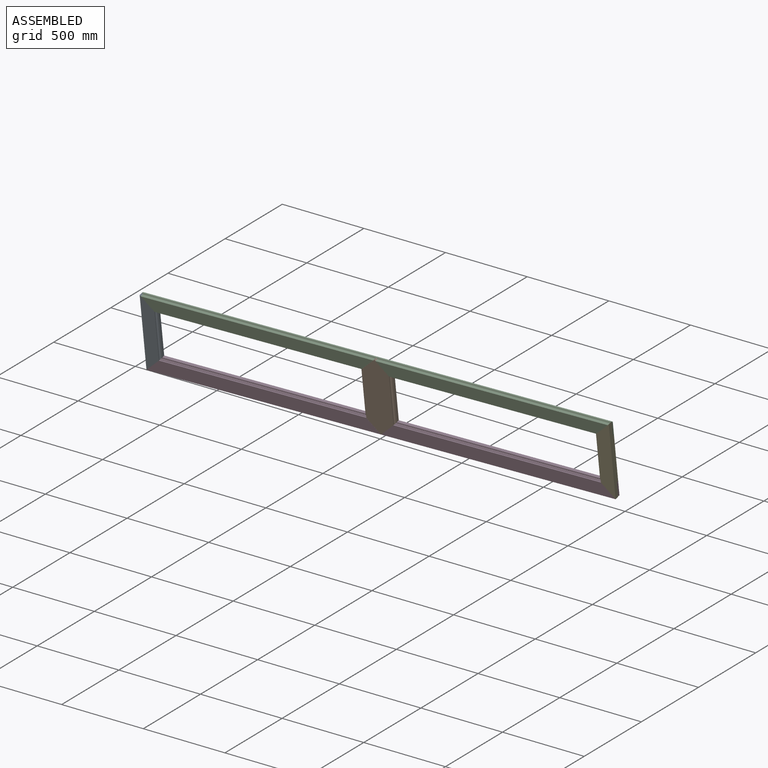
[diagram: assembled view]
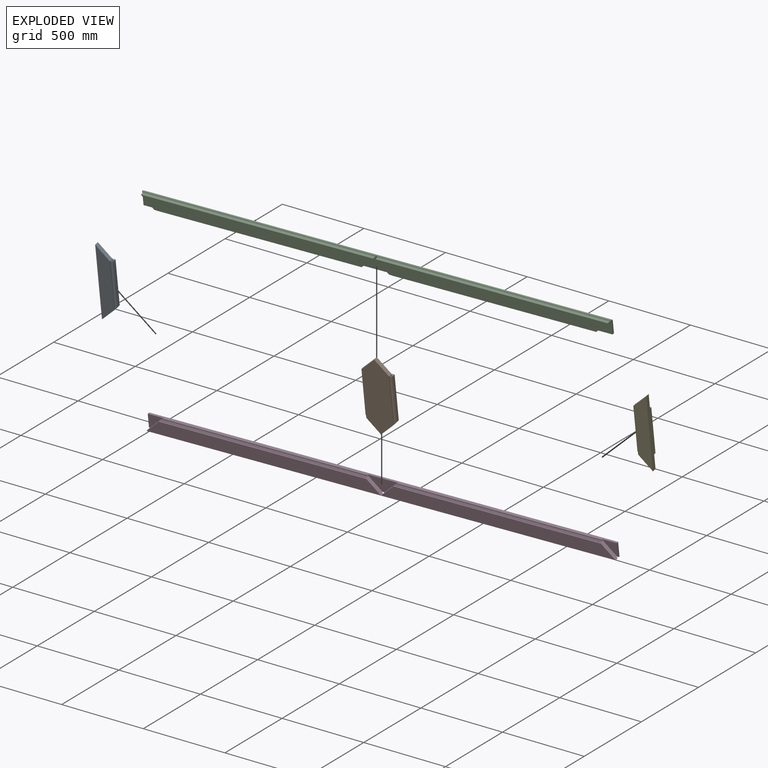
[diagram: exploded view]
GUIDED TOUR — MATED ASSEMBLY (Onshape document 4e31cb3151706491d3d17092, AutoMate assembly 4e31cb3151706491d3d17092_1473fdc243aa295805edc3ee_e0cff430ac73fe8d3c563f45_default)

This assembly has 5 components, labeled P0..P4 below (a component is one placed occurrence of a part; the same part can appear more than once), held together by 11 mates. A mate is a constraint between two components; its type names the relative motion it leaves free:
  PLANAR — leaves sliding in the plane through the listed point (normal = the listed direction) and rotation about that normal free.
Axis/direction vectors are unit vectors and 'through' points are millimeter coordinates, both in the assembly's world frame.

MATES
  1. PLANAR "Planar 1": P0 <-> P3, direction (0.681, 0.178, -0.711) through (-1346.15, -266.97, -180.40) mm
  2. PLANAR "Planar 3": P3 <-> P0, direction (0.067, -0.981, -0.182) through (-1358.34, -258.79, -160.40) mm
  3. PLANAR "Planar 11": P1 <-> P3, direction (-0.067, 0.981, 0.182) through (-20.21, -162.46, -189.99) mm
  4. PLANAR "Planar 5": P2 <-> P0, direction (-0.729, 0.076, -0.680) through (-1330.82, -333.39, 184.38) mm
  5. PLANAR "Planar 12": P3 <-> P1, direction (-0.681, -0.178, 0.711) through (22.27, -168.76, -209.84) mm
  6. PLANAR "Planar 9": P3 <-> P4, direction (0.729, -0.076, 0.680) through (1305.47, -76.43, -237.95) mm
  7. PLANAR "Planar 6": P2 <-> P0, direction (0.067, -0.981, -0.182) through (-1346.82, -319.69, 172.26) mm
  8. PLANAR "Planar 7": P3 <-> P4, direction (0.067, -0.981, -0.182) through (1317.75, -66.25, -219.01) mm
  9. PLANAR "Planar 10": P3 <-> P1, direction (0.034, -0.180, 0.983) through (-19.51, -164.41, -160.22) mm
  10. PLANAR "Planar 4": P0 <-> P2, direction (0.034, -0.180, 0.983) through (-1333.49, -307.06, 143.96) mm
  11. PLANAR "Planar 8": P4 <-> P3, direction (-0.034, 0.180, -0.983) through (1303.71, -66.35, -188.68) mm

ASSEMBLY ORDER
  1. P1 — the base component [order verified]
  2. P0 [order verified]
  3. P2 [order verified]
  4. P4 [order verified]
  5. P3 [order verified]
Order-tag legend:
  [order verified] — this step's position reverses a verified removal order: the component was checked to insert without passing through the ones already placed.

Of the 5 components, 5 carry the full construction recipe — the FeatureScript program that regenerates the part's solid from scratch; the rest are supplied as boundary geometry only.
Each toured component is shown spotlighted twice — in the assembled view, then in the exploded view, where a leader line traces a displaced component back to its assembled socket (saturated green if recipe-attached, orange if geometry-only; every other component desaturated gray) — followed by its recipe or geometry summary and the mates that hold it.
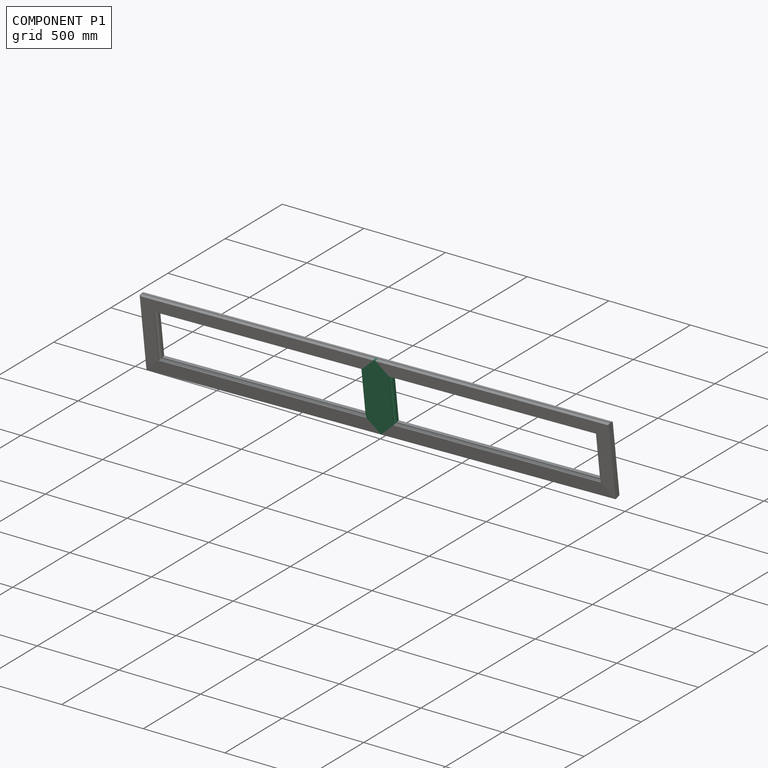
[diagram: component P1 — assembled]
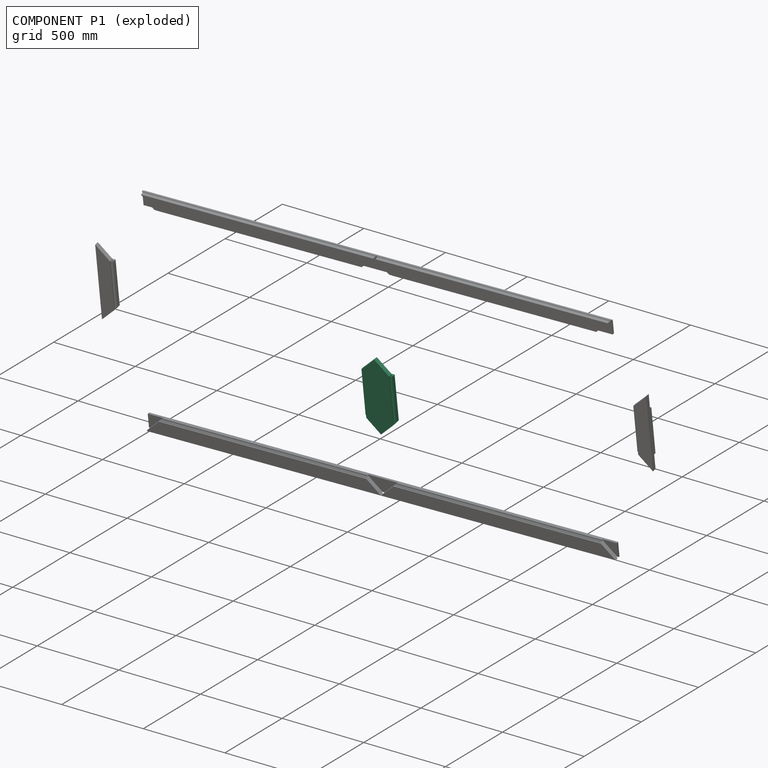
[diagram: component P1 — exploded]
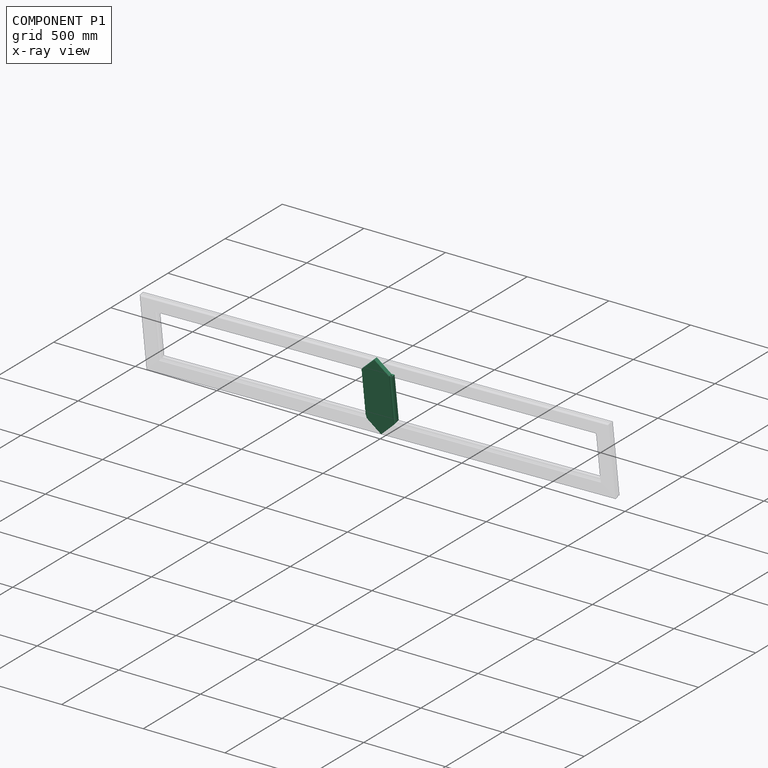
[diagram: component P1 — x-ray view]
COMPONENT P1 — recipe-attached (CADFS 00863584, mesh-verified: the recipe's output STEP matches this component's geometry to below the mesh-comparison resolution (tessellation chordal tolerance ~0.738 mm)).
Held by: PLANAR mate "Planar 11" to P3; PLANAR mate "Planar 12" to P3; PLANAR mate "Planar 10" to P3.
Construction recipe (FeatureScript — the CAD program that rebuilds this solid; sketch coordinates are in the units given by the * unit suffixes, e.g. mm):

FeatureScript 1511;
import(path : "onshape/std/geometry.fs", version : "1511.0");
import(path : "onshape/std/common.fs", version : "1511.0");
const mm = millimeter;
const VERTEX = EntityType.VERTEX;
const EDGE = EntityType.EDGE;
const FACE = EntityType.FACE;
const BODY = EntityType.BODY;
function v(x, y){return vector(x, y);}
function OD(order){return orderDisambiguation(order);}
function OSD(set){return originalSetDisambiguation(set);}
function TD(topology){return topologyDisambiguation(topology);}
function TDD(query){return trueDependencyDisambiguation(query);}
function sQuery(a, b, c) {return sketchEntityQuery(a, b, c);}

annotation { "Feature Type Name" : "Feature", "Feature Type Description" : "" }
export const myFeature = defineFeature(function(context is Context, id is Id, definition is map)
    precondition{}
    {
        {
            var Q0;
            Q0=qCreatedBy(makeId("Front.planeOp"),FACE);
            var sketch = newSketch(context, id + "F0", { "sketchPlane" : qUnion([Q0])});
            skLineSegment(sketch, "E0.bottom", {"start": v(-228.6, 44.45) * mm, "end": v(228.6, 44.45) * mm});
            skLineSegment(sketch, "E0.top", {"start": v(-228.6, -44.45) * mm, "end": v(228.6, -44.45) * mm});
            skLineSegment(sketch, "E0.left", {"start": v(-228.6, 44.45) * mm, "end": v(-228.6, -44.45) * mm});
            skLineSegment(sketch, "E0.right", {"start": v(228.6, 44.45) * mm, "end": v(228.6, -44.45) * mm});
            skPoint(sketch, "E0.middle", {"position": v(0, 0) * mm});
            skSolve(sketch);
        }
        {
            var Q0;
            Q0=qSketchRegion(id+"F0",true);
            extrude(context, id + "F1", {"entities" : qUnion([Q0]), "oppositeDirection" : true, "depth" : 38.1 * mm, "offsetDistance" : 25.4 * mm});
        }
        {
            var Q0;
            Q0=makeQuery(id+"F1.opExtrude","SWEPT_FACE",FACE,{"disambiguationData":[OSD([sQuery(id+"F0.wireOp",EDGE,"E0.right")])]});
            var sketch = newSketch(context, id + "F2", { "sketchPlane" : qUnion([Q0])});
            skLineSegment(sketch, "E1", {"start": v(22.22, -38.1) * mm, "end": v(19.05, -44.45) * mm});
            skLineSegment(sketch, "E2", {"start": v(31.75, -44.45) * mm, "end": v(28.57, -38.1) * mm});
            skLineSegment(sketch, "E3", {"start": v(22.22, -38.1) * mm, "end": v(28.57, -38.1) * mm});
            skLineSegment(sketch, "E4", {"start": v(31.75, -44.45) * mm, "end": v(19.05, -44.45) * mm});
            skSolve(sketch);
        }
        {
            var Q0;
            Q0=makeQuery(id+"F1.opExtrude","SWEPT_FACE",FACE,{"disambiguationData":[OSD([sQuery(id+"F0.wireOp",EDGE,"E0.right")])]});
            var sketch = newSketch(context, id + "F3", { "sketchPlane" : qUnion([Q0])});
            skLineSegment(sketch, "E5", {"start": v(0, 34.93) * mm, "end": v(6.35, 34.93) * mm});
            skLineSegment(sketch, "E6", {"start": v(12.7, 34.93) * mm, "end": v(19.05, 34.93) * mm});
            skArc(sketch, "E7", {"start": v(8.5, 39.69) * mm, "mid": v(6.91, 37.54) * mm, "end": v(6.35, 34.93) * mm});
            skLineSegment(sketch, "E8", {"start": v(12.7, 44.45) * mm, "end": v(12.7, 34.93) * mm});
            skLineSegment(sketch, "E9", {"start": v(19.05, 34.93) * mm, "end": v(19.05, 44.45) * mm});
            skLineSegment(sketch, "E10", {"start": v(10.65, 44.45) * mm, "end": v(0, 44.45) * mm});
            skLineSegment(sketch, "E11", {"start": v(0, 44.45) * mm, "end": v(0, 34.93) * mm});
            skLineSegment(sketch, "E12", {"start": v(12.7, 44.45) * mm, "end": v(19.05, 44.45) * mm});
            skArc(sketch, "E13", {"start": v(8.5, 39.69) * mm, "mid": v(10.09, 41.84) * mm, "end": v(10.65, 44.45) * mm});
            skSolve(sketch);
        }
        {
            var Q0;
            Q0=qSketchRegion(id+"F3",true);
            extrude(context, id + "F4", {"entities" : qUnion([Q0]), "operationType" : NewBodyOperationType.REMOVE, "endBound" : BoundingType.THROUGH_ALL, "oppositeDirection" : true, "depth" : 25.4 * mm, "offsetDistance" : 25.4 * mm});
        }
        {
            var Q0;
            Q0=makeQuery(id+"F1.opExtrude","CAP_FACE",FACE,{"disambiguationData":[OSD([sQuery(id+"F0.wireOp",EDGE,"E0.bottom"),sQuery(id+"F0.wireOp",EDGE,"E0.top"),sQuery(id+"F0.wireOp",EDGE,"E0.left"),sQuery(id+"F0.wireOp",EDGE,"E0.right")])],"isStart":true});
            var sketch = newSketch(context, id + "F5", { "sketchPlane" : qUnion([Q0])});
            skLineSegment(sketch, "E14", {"start": v(-228.6, -44.45) * mm, "end": v(-139.7, 44.45) * mm});
            skLineSegment(sketch, "E15", {"start": v(-139.7, 44.45) * mm, "end": v(-228.6, 44.45) * mm});
            skLineSegment(sketch, "E16", {"start": v(-228.6, 44.45) * mm, "end": v(-228.6, -44.45) * mm});
            skPoint(sketch, "E17", {"position": v(-228.6, -4.76) * mm});
            skLineSegment(sketch, "E18", {"start": v(0, 760.27) * mm, "end": v(0, -577.9) * mm, "construction": true});
            skLineSegment(sketch, "E19.MirrorCS", {"start": v(228.6, 44.45) * mm, "end": v(228.6, -44.45) * mm});
            skLineSegment(sketch, "E20.MirrorCS", {"start": v(228.6, -44.45) * mm, "end": v(139.7, 44.45) * mm});
            skLineSegment(sketch, "E21.MirrorCS", {"start": v(139.7, 44.45) * mm, "end": v(228.6, 44.45) * mm});
            skSolve(sketch);
        }
        {
            var Q0;
            Q0=qSketchRegion(id+"F5",true);
            extrude(context, id + "F6", {"entities" : qUnion([Q0]), "operationType" : NewBodyOperationType.REMOVE, "oppositeDirection" : true, "depth" : 25.4 * mm, "offsetDistance" : 25.4 * mm});
        }
        {
            var Q0;
            {var subQ2=sQuery(id+"F0.wireOp",EDGE,"E0.bottom");Q0=makeQuery(id+"F4.boolean.opBoolean","SPLIT",FACE,{"disambiguationData":[TD([makeQuery(id+"F4.opExtrude","SWEPT_FACE",FACE,{"disambiguationData":[OSD([sQuery(id+"F3.wireOp",EDGE,"E9")])]})])],"derivedFrom":makeQuery(id+"F1.opExtrude","SWEPT_FACE",FACE,{"disambiguationData":[OSD([subQ2])]})});}
            var sketch = newSketch(context, id + "F7", { "sketchPlane" : qUnion([Q0])});
            skLineSegment(sketch, "E22.bottom", {"start": v(-228.6, 38.1) * mm, "end": v(-139.7, 38.1) * mm});
            skLineSegment(sketch, "E22.top", {"start": v(-228.6, 25.4) * mm, "end": v(-139.7, 25.4) * mm});
            skLineSegment(sketch, "E22.left", {"start": v(-228.6, 38.1) * mm, "end": v(-228.6, 25.4) * mm});
            skLineSegment(sketch, "E22.right", {"start": v(-139.7, 38.1) * mm, "end": v(-139.7, 25.4) * mm});
            skLineSegment(sketch, "E23", {"start": v(0, 107.05) * mm, "end": v(0, -115.05) * mm, "construction": true});
            skLineSegment(sketch, "E24.MirrorCS", {"start": v(228.6, 38.1) * mm, "end": v(139.7, 38.1) * mm});
            skLineSegment(sketch, "E25.MirrorCS", {"start": v(228.6, 38.1) * mm, "end": v(228.6, 25.4) * mm});
            skLineSegment(sketch, "E26.MirrorCS", {"start": v(228.6, 25.4) * mm, "end": v(139.7, 25.4) * mm});
            skLineSegment(sketch, "E27.MirrorCS", {"start": v(139.7, 38.1) * mm, "end": v(139.7, 25.4) * mm});
            skSolve(sketch);
        }
        {
            var Q0;
            Q0=qSketchRegion(id+"F7",true);
            extrude(context, id + "F8", {"entities" : qUnion([Q0]), "operationType" : NewBodyOperationType.REMOVE, "endBound" : BoundingType.UP_TO_NEXT, "oppositeDirection" : true, "depth" : 25.4 * mm, "offsetDistance" : 25.4 * mm});
        }
        {
            var Q0;
            Q0=makeQuery(id+"F1.opExtrude","SWEPT_BODY",BODY,{"disambiguationData":[OSD([sQuery(id+"F0.wireOp",EDGE,"E0.bottom"),sQuery(id+"F0.wireOp",EDGE,"E0.top"),sQuery(id+"F0.wireOp",EDGE,"E0.left"),sQuery(id+"F0.wireOp",EDGE,"E0.right")])]});
            var Q1;
            Q1=makeQuery(id+"F1.opExtrude","SWEPT_FACE",FACE,{"disambiguationData":[OSD([sQuery(id+"F0.wireOp",EDGE,"E0.top")])]});
            mirror(context, id + "F9", {"operationType" : NewBodyOperationType.ADD, "entities" : qUnion([Q0]), "mirrorPlane" : qUnion([Q1])});
        }
    });
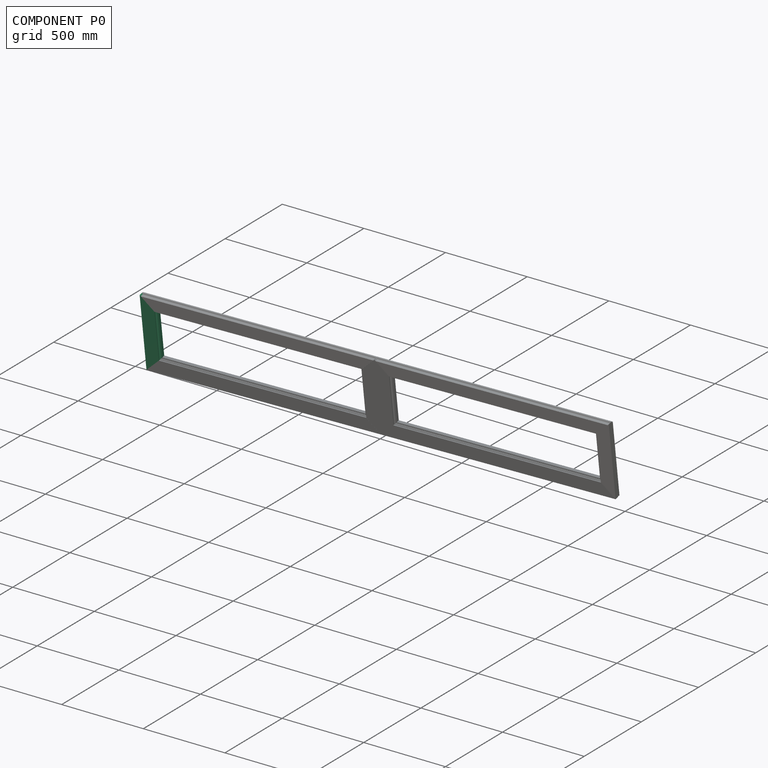
[diagram: component P0 — assembled]
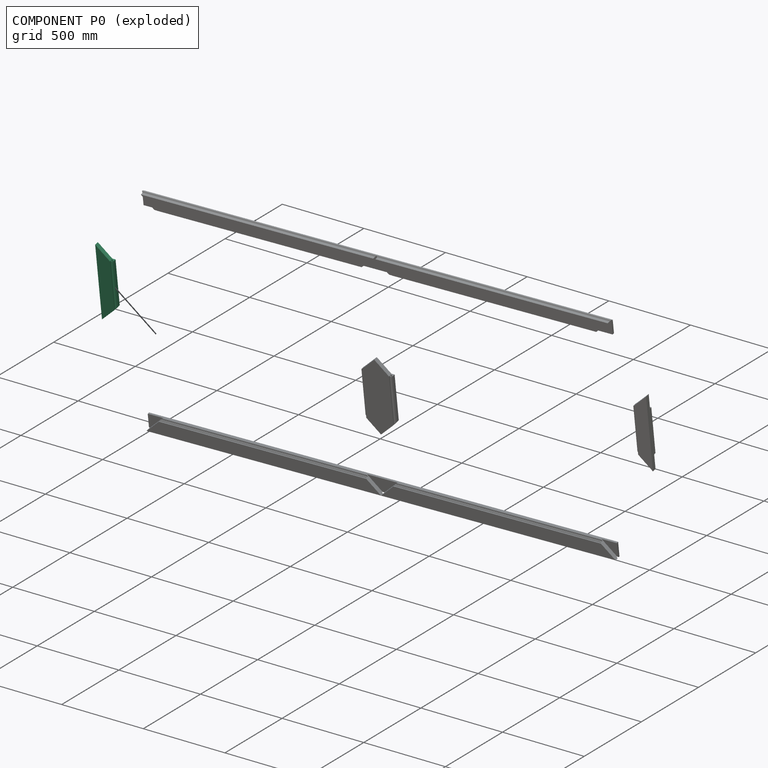
[diagram: component P0 — exploded]
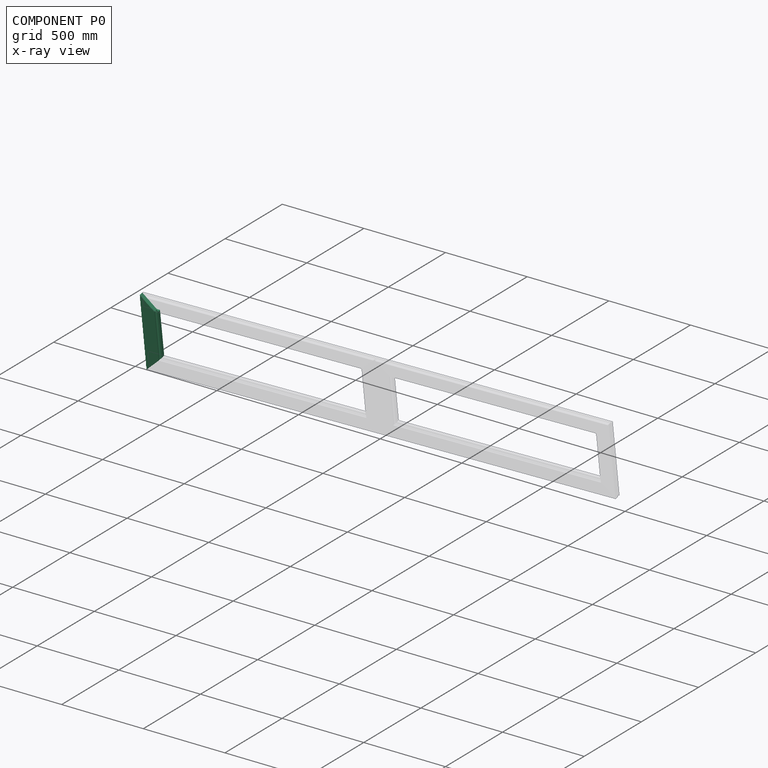
[diagram: component P0 — x-ray view]
COMPONENT P0 — recipe-attached (CADFS 00863583, mesh-verified: the recipe's output STEP matches this component's geometry to below the mesh-comparison resolution (tessellation chordal tolerance ~0.701 mm)).
Held by: PLANAR mate "Planar 1" to P3; PLANAR mate "Planar 3" to P3; PLANAR mate "Planar 5" to P2; PLANAR mate "Planar 6" to P2; PLANAR mate "Planar 4" to P2.
Construction recipe (FeatureScript — the CAD program that rebuilds this solid; sketch coordinates are in the units given by the * unit suffixes, e.g. mm):

FeatureScript 1511;
import(path : "onshape/std/geometry.fs", version : "1511.0");
import(path : "onshape/std/common.fs", version : "1511.0");
const mm = millimeter;
const VERTEX = EntityType.VERTEX;
const EDGE = EntityType.EDGE;
const FACE = EntityType.FACE;
const BODY = EntityType.BODY;
function v(x, y){return vector(x, y);}
function OD(order){return orderDisambiguation(order);}
function OSD(set){return originalSetDisambiguation(set);}
function TD(topology){return topologyDisambiguation(topology);}
function TDD(query){return trueDependencyDisambiguation(query);}
function sQuery(a, b, c) {return sketchEntityQuery(a, b, c);}

annotation { "Feature Type Name" : "Feature", "Feature Type Description" : "" }
export const myFeature = defineFeature(function(context is Context, id is Id, definition is map)
    precondition{}
    {
        {
            var Q0;
            Q0=qCreatedBy(makeId("Front.planeOp"),FACE);
            var sketch = newSketch(context, id + "F0", { "sketchPlane" : qUnion([Q0])});
            skLineSegment(sketch, "E0.bottom", {"start": v(-228.6, 44.45) * mm, "end": v(228.6, 44.45) * mm});
            skLineSegment(sketch, "E0.top", {"start": v(-228.6, -44.45) * mm, "end": v(228.6, -44.45) * mm});
            skLineSegment(sketch, "E0.left", {"start": v(-228.6, 44.45) * mm, "end": v(-228.6, -44.45) * mm});
            skLineSegment(sketch, "E0.right", {"start": v(228.6, 44.45) * mm, "end": v(228.6, -44.45) * mm});
            skPoint(sketch, "E0.middle", {"position": v(0, 0) * mm});
            skSolve(sketch);
        }
        {
            var Q0;
            Q0=qSketchRegion(id+"F0",true);
            extrude(context, id + "F1", {"entities" : qUnion([Q0]), "oppositeDirection" : true, "depth" : 38.1 * mm, "offsetDistance" : 25.4 * mm});
        }
        {
            var Q0;
            Q0=makeQuery(id+"F1.opExtrude","SWEPT_FACE",FACE,{"disambiguationData":[OSD([sQuery(id+"F0.wireOp",EDGE,"E0.right")])]});
            var sketch = newSketch(context, id + "F2", { "sketchPlane" : qUnion([Q0])});
            skLineSegment(sketch, "E1", {"start": v(22.22, -38.1) * mm, "end": v(19.05, -44.45) * mm});
            skLineSegment(sketch, "E2", {"start": v(31.75, -44.45) * mm, "end": v(28.57, -38.1) * mm});
            skLineSegment(sketch, "E3", {"start": v(22.22, -38.1) * mm, "end": v(28.57, -38.1) * mm});
            skLineSegment(sketch, "E4", {"start": v(31.75, -44.45) * mm, "end": v(19.05, -44.45) * mm});
            skSolve(sketch);
        }
        {
            var Q0;
            Q0=makeQuery(id+"F1.opExtrude","SWEPT_FACE",FACE,{"disambiguationData":[OSD([sQuery(id+"F0.wireOp",EDGE,"E0.right")])]});
            var sketch = newSketch(context, id + "F3", { "sketchPlane" : qUnion([Q0])});
            skLineSegment(sketch, "E5", {"start": v(0, 34.93) * mm, "end": v(6.35, 34.93) * mm});
            skLineSegment(sketch, "E6", {"start": v(12.7, 34.93) * mm, "end": v(19.05, 34.93) * mm});
            skArc(sketch, "E7", {"start": v(8.5, 39.69) * mm, "mid": v(6.91, 37.54) * mm, "end": v(6.35, 34.93) * mm});
            skLineSegment(sketch, "E8", {"start": v(12.7, 44.45) * mm, "end": v(12.7, 34.93) * mm});
            skLineSegment(sketch, "E9", {"start": v(19.05, 34.93) * mm, "end": v(19.05, 44.45) * mm});
            skLineSegment(sketch, "E10", {"start": v(10.65, 44.45) * mm, "end": v(0, 44.45) * mm});
            skLineSegment(sketch, "E11", {"start": v(0, 44.45) * mm, "end": v(0, 34.93) * mm});
            skLineSegment(sketch, "E12", {"start": v(12.7, 44.45) * mm, "end": v(19.05, 44.45) * mm});
            skArc(sketch, "E13", {"start": v(8.5, 39.69) * mm, "mid": v(10.09, 41.84) * mm, "end": v(10.65, 44.45) * mm});
            skSolve(sketch);
        }
        {
            var Q0;
            Q0=qSketchRegion(id+"F3",true);
            extrude(context, id + "F4", {"entities" : qUnion([Q0]), "operationType" : NewBodyOperationType.REMOVE, "endBound" : BoundingType.THROUGH_ALL, "oppositeDirection" : true, "depth" : 25.4 * mm, "offsetDistance" : 25.4 * mm});
        }
        {
            var Q0;
            Q0=makeQuery(id+"F1.opExtrude","CAP_FACE",FACE,{"disambiguationData":[OSD([sQuery(id+"F0.wireOp",EDGE,"E0.bottom"),sQuery(id+"F0.wireOp",EDGE,"E0.top"),sQuery(id+"F0.wireOp",EDGE,"E0.left"),sQuery(id+"F0.wireOp",EDGE,"E0.right")])],"isStart":true});
            var sketch = newSketch(context, id + "F5", { "sketchPlane" : qUnion([Q0])});
            skLineSegment(sketch, "E14", {"start": v(-228.6, -44.45) * mm, "end": v(-139.7, 44.45) * mm});
            skLineSegment(sketch, "E15", {"start": v(-139.7, 44.45) * mm, "end": v(-228.6, 44.45) * mm});
            skLineSegment(sketch, "E16", {"start": v(-228.6, 44.45) * mm, "end": v(-228.6, -44.45) * mm});
            skPoint(sketch, "E17", {"position": v(-228.6, -4.76) * mm});
            skLineSegment(sketch, "E18", {"start": v(0, 760.27) * mm, "end": v(0, -577.9) * mm, "construction": true});
            skLineSegment(sketch, "E19.MirrorCS", {"start": v(228.6, 44.45) * mm, "end": v(228.6, -44.45) * mm});
            skLineSegment(sketch, "E20.MirrorCS", {"start": v(228.6, -44.45) * mm, "end": v(139.7, 44.45) * mm});
            skLineSegment(sketch, "E21.MirrorCS", {"start": v(139.7, 44.45) * mm, "end": v(228.6, 44.45) * mm});
            skSolve(sketch);
        }
        {
            var Q0;
            Q0=qSketchRegion(id+"F5",true);
            extrude(context, id + "F6", {"entities" : qUnion([Q0]), "operationType" : NewBodyOperationType.REMOVE, "oppositeDirection" : true, "depth" : 25.4 * mm, "offsetDistance" : 25.4 * mm});
        }
        {
            var Q0;
            {var subQ2=sQuery(id+"F0.wireOp",EDGE,"E0.bottom");Q0=makeQuery(id+"F4.boolean.opBoolean","SPLIT",FACE,{"disambiguationData":[TD([makeQuery(id+"F4.opExtrude","SWEPT_FACE",FACE,{"disambiguationData":[OSD([sQuery(id+"F3.wireOp",EDGE,"E9")])]})])],"derivedFrom":makeQuery(id+"F1.opExtrude","SWEPT_FACE",FACE,{"disambiguationData":[OSD([subQ2])]})});}
            var sketch = newSketch(context, id + "F7", { "sketchPlane" : qUnion([Q0])});
            skLineSegment(sketch, "E22.bottom", {"start": v(-228.6, 38.1) * mm, "end": v(-139.7, 38.1) * mm});
            skLineSegment(sketch, "E22.top", {"start": v(-228.6, 25.4) * mm, "end": v(-139.7, 25.4) * mm});
            skLineSegment(sketch, "E22.left", {"start": v(-228.6, 38.1) * mm, "end": v(-228.6, 25.4) * mm});
            skLineSegment(sketch, "E22.right", {"start": v(-139.7, 38.1) * mm, "end": v(-139.7, 25.4) * mm});
            skLineSegment(sketch, "E23", {"start": v(0, 107.05) * mm, "end": v(0, -115.05) * mm, "construction": true});
            skLineSegment(sketch, "E24.MirrorCS", {"start": v(228.6, 38.1) * mm, "end": v(139.7, 38.1) * mm});
            skLineSegment(sketch, "E25.MirrorCS", {"start": v(228.6, 38.1) * mm, "end": v(228.6, 25.4) * mm});
            skLineSegment(sketch, "E26.MirrorCS", {"start": v(228.6, 25.4) * mm, "end": v(139.7, 25.4) * mm});
            skLineSegment(sketch, "E27.MirrorCS", {"start": v(139.7, 38.1) * mm, "end": v(139.7, 25.4) * mm});
            skSolve(sketch);
        }
        {
            var Q0;
            Q0 = qSketchRegion(id + "F7", true);
            extrude(context, id + "F8", {"entities" : qUnion([Q0]), "operationType" : NewBodyOperationType.REMOVE, "endBound" : BoundingType.UP_TO_NEXT, "oppositeDirection" : true, "depth" : 25.4 * mm, "offsetDistance" : 25.4 * mm});
        }
    });
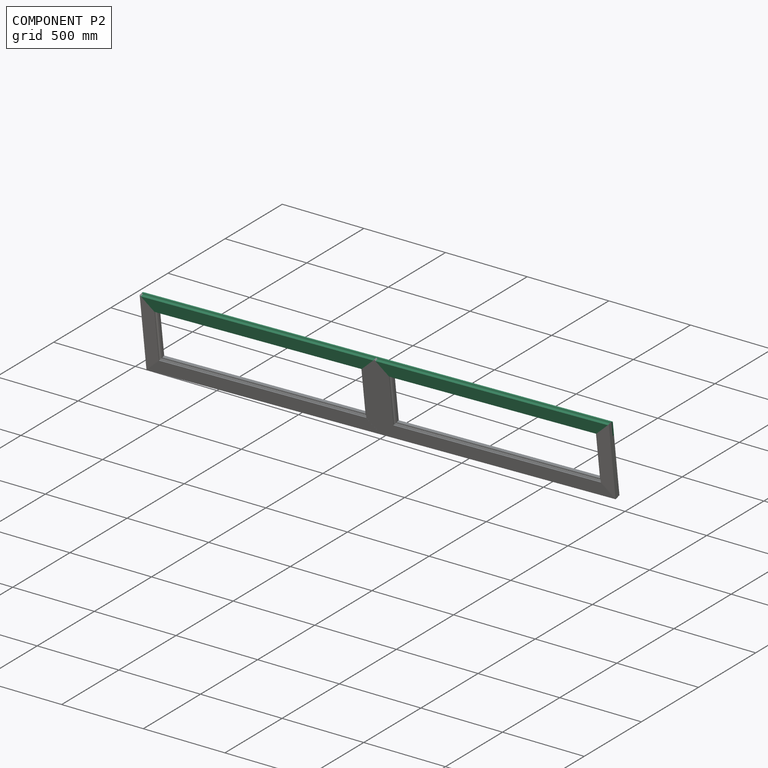
[diagram: component P2 — assembled]
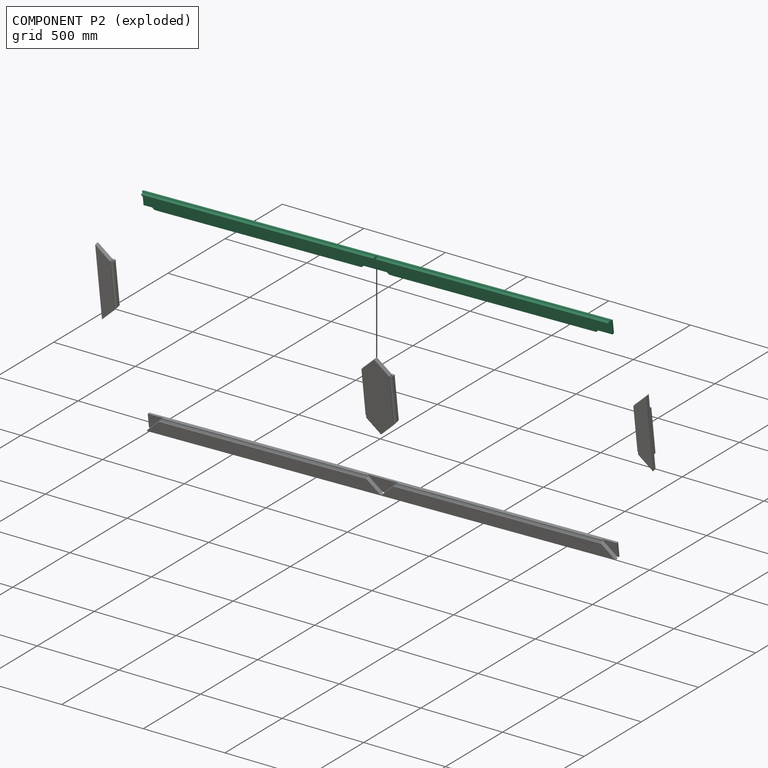
[diagram: component P2 — exploded]
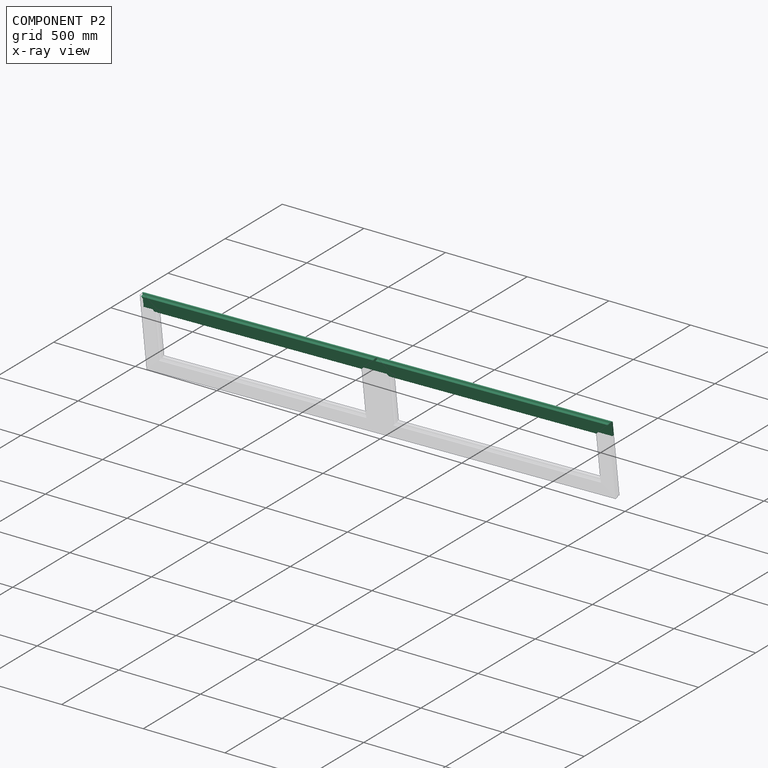
[diagram: component P2 — x-ray view]
COMPONENT P2 — recipe-attached (CADFS 00863587, mesh-verified: the recipe's output STEP matches this component's geometry to below the mesh-comparison resolution (tessellation chordal tolerance ~4.12 mm)).
Held by: PLANAR mate "Planar 5" to P0; PLANAR mate "Planar 6" to P0; PLANAR mate "Planar 4" to P0.
Construction recipe (FeatureScript — the CAD program that rebuilds this solid; sketch coordinates are in the units given by the * unit suffixes, e.g. mm):

FeatureScript 1511;
import(path : "onshape/std/geometry.fs", version : "1511.0");
import(path : "onshape/std/common.fs", version : "1511.0");
const mm = millimeter;
const VERTEX = EntityType.VERTEX;
const EDGE = EntityType.EDGE;
const FACE = EntityType.FACE;
const BODY = EntityType.BODY;
function v(x, y){return vector(x, y);}
function OD(order){return orderDisambiguation(order);}
function OSD(set){return originalSetDisambiguation(set);}
function TD(topology){return topologyDisambiguation(topology);}
function TDD(query){return trueDependencyDisambiguation(query);}
function sQuery(a, b, c) {return sketchEntityQuery(a, b, c);}

annotation { "Feature Type Name" : "Feature", "Feature Type Description" : "" }
export const myFeature = defineFeature(function(context is Context, id is Id, definition is map)
    precondition{}
    {
        {
            var Q0;
            Q0=qCreatedBy(makeId("Front.planeOp"),FACE);
            var sketch = newSketch(context, id + "F0", { "sketchPlane" : qUnion([Q0])});
            skLineSegment(sketch, "E0.bottom", {"start": v(-1371.6, 44.45) * mm, "end": v(1371.6, 44.45) * mm});
            skLineSegment(sketch, "E0.top", {"start": v(-1371.6, -44.45) * mm, "end": v(1371.6, -44.45) * mm});
            skLineSegment(sketch, "E0.left", {"start": v(-1371.6, 44.45) * mm, "end": v(-1371.6, -44.45) * mm});
            skLineSegment(sketch, "E0.right", {"start": v(1371.6, 44.45) * mm, "end": v(1371.6, -44.45) * mm});
            skPoint(sketch, "E0.middle", {"position": v(0, 0) * mm});
            skSolve(sketch);
        }
        {
            var Q0;
            Q0=qSketchRegion(id+"F0",true);
            extrude(context, id + "F1", {"entities" : qUnion([Q0]), "oppositeDirection" : true, "depth" : 38.1 * mm, "offsetDistance" : 25.4 * mm});
        }
        {
            var Q0;
            Q0=makeQuery(id+"F1.opExtrude","SWEPT_FACE",FACE,{"disambiguationData":[OSD([sQuery(id+"F0.wireOp",EDGE,"E0.right")])]});
            var sketch = newSketch(context, id + "F2", { "sketchPlane" : qUnion([Q0])});
            skLineSegment(sketch, "E1", {"start": v(38.1, 44.45) * mm, "end": v(38.1, 38.1) * mm});
            skLineSegment(sketch, "E2", {"start": v(38.1, 38.1) * mm, "end": v(31.75, 38.1) * mm});
            skLineSegment(sketch, "E3", {"start": v(31.75, 38.1) * mm, "end": v(28.58, 44.45) * mm});
            skLineSegment(sketch, "E4", {"start": v(22.23, 44.45) * mm, "end": v(19.05, 38.1) * mm});
            skLineSegment(sketch, "E5", {"start": v(19.05, 38.1) * mm, "end": v(0, 38.1) * mm});
            skLineSegment(sketch, "E6", {"start": v(0, 38.1) * mm, "end": v(0, 44.45) * mm});
            skLineSegment(sketch, "E7", {"start": v(0, 44.45) * mm, "end": v(22.22, 44.45) * mm});
            skLineSegment(sketch, "E8", {"start": v(28.58, 44.45) * mm, "end": v(38.1, 44.45) * mm});
            skSolve(sketch);
        }
        {
            var Q0;
            Q0=qSketchRegion(id+"F2",true);
            extrude(context, id + "F3", {"entities" : qUnion([Q0]), "operationType" : NewBodyOperationType.REMOVE, "endBound" : BoundingType.THROUGH_ALL, "oppositeDirection" : true, "depth" : 25.4 * mm, "offsetDistance" : 25.4 * mm});
        }
        {
            var Q0;
            Q0=makeQuery(id+"F1.opExtrude","SWEPT_FACE",FACE,{"disambiguationData":[OSD([sQuery(id+"F0.wireOp",EDGE,"E0.right")])]});
            var sketch = newSketch(context, id + "F4", { "sketchPlane" : qUnion([Q0])});
            skLineSegment(sketch, "E9", {"start": v(0, -34.92) * mm, "end": v(6.35, -34.92) * mm});
            skLineSegment(sketch, "E10", {"start": v(12.7, -34.92) * mm, "end": v(19.05, -34.92) * mm});
            skLineSegment(sketch, "E11", {"start": v(12.7, -34.92) * mm, "end": v(12.7, -44.45) * mm});
            skLineSegment(sketch, "E12", {"start": v(19.05, -44.45) * mm, "end": v(19.05, -34.92) * mm});
            skLineSegment(sketch, "E13", {"start": v(10.65, -44.45) * mm, "end": v(0, -44.45) * mm});
            skLineSegment(sketch, "E14", {"start": v(0, -34.92) * mm, "end": v(0, -44.45) * mm});
            skLineSegment(sketch, "E15", {"start": v(12.7, -44.45) * mm, "end": v(19.05, -44.45) * mm});
            skArc(sketch, "E16", {"start": v(6.35, -34.92) * mm, "mid": v(6.91, -37.54) * mm, "end": v(8.5, -39.69) * mm});
            skArc(sketch, "E17", {"start": v(10.65, -44.45) * mm, "mid": v(10.09, -41.84) * mm, "end": v(8.5, -39.69) * mm});
            skSolve(sketch);
        }
        {
            var Q0;
            Q0=qSketchRegion(id+"F4",true);
            extrude(context, id + "F5", {"entities" : qUnion([Q0]), "operationType" : NewBodyOperationType.REMOVE, "endBound" : BoundingType.THROUGH_ALL, "oppositeDirection" : true, "depth" : 25.4 * mm, "offsetDistance" : 25.4 * mm});
        }
        {
            var Q0;
            Q0=makeQuery(id+"F1.opExtrude","CAP_FACE",FACE,{"disambiguationData":[OSD([sQuery(id+"F0.wireOp",EDGE,"E0.bottom"),sQuery(id+"F0.wireOp",EDGE,"E0.top"),sQuery(id+"F0.wireOp",EDGE,"E0.left"),sQuery(id+"F0.wireOp",EDGE,"E0.right")])],"isStart":true});
            var sketch = newSketch(context, id + "F6", { "sketchPlane" : qUnion([Q0])});
            skLineSegment(sketch, "E18", {"start": v(-1282.7, -44.45) * mm, "end": v(-1371.6, 44.45) * mm});
            skLineSegment(sketch, "E19", {"start": v(-1282.7, -44.45) * mm, "end": v(-1371.6, -44.45) * mm});
            skLineSegment(sketch, "E20", {"start": v(-1371.6, 44.45) * mm, "end": v(-1371.6, -44.45) * mm});
            skLineSegment(sketch, "E21", {"start": v(0, 760.27) * mm, "end": v(0, -577.9) * mm, "construction": true});
            skLineSegment(sketch, "E22", {"start": v(-89, -44.45) * mm, "end": v(0, 44.55) * mm});
            skLineSegment(sketch, "E23", {"start": v(-89, -44.45) * mm, "end": v(0, -44.45) * mm});
            skLineSegment(sketch, "E24.MirrorCS", {"start": v(89, -44.45) * mm, "end": v(0, -44.45) * mm});
            skLineSegment(sketch, "E25.MirrorCS", {"start": v(89, -44.45) * mm, "end": v(0, 44.55) * mm});
            skLineSegment(sketch, "E26.MirrorCS", {"start": v(1371.6, 44.45) * mm, "end": v(1371.6, -44.45) * mm});
            skLineSegment(sketch, "E27.MirrorCS", {"start": v(1282.7, -44.45) * mm, "end": v(1371.6, 44.45) * mm});
            skLineSegment(sketch, "E28.MirrorCS", {"start": v(1282.7, -44.45) * mm, "end": v(1371.6, -44.45) * mm});
            skSolve(sketch);
        }
        {
            var Q0;
            Q0=qSketchRegion(id+"F6",true);
            extrude(context, id + "F7", {"entities" : qUnion([Q0]), "operationType" : NewBodyOperationType.REMOVE, "oppositeDirection" : true, "depth" : 25.4 * mm, "offsetDistance" : 25.4 * mm});
        }
    });
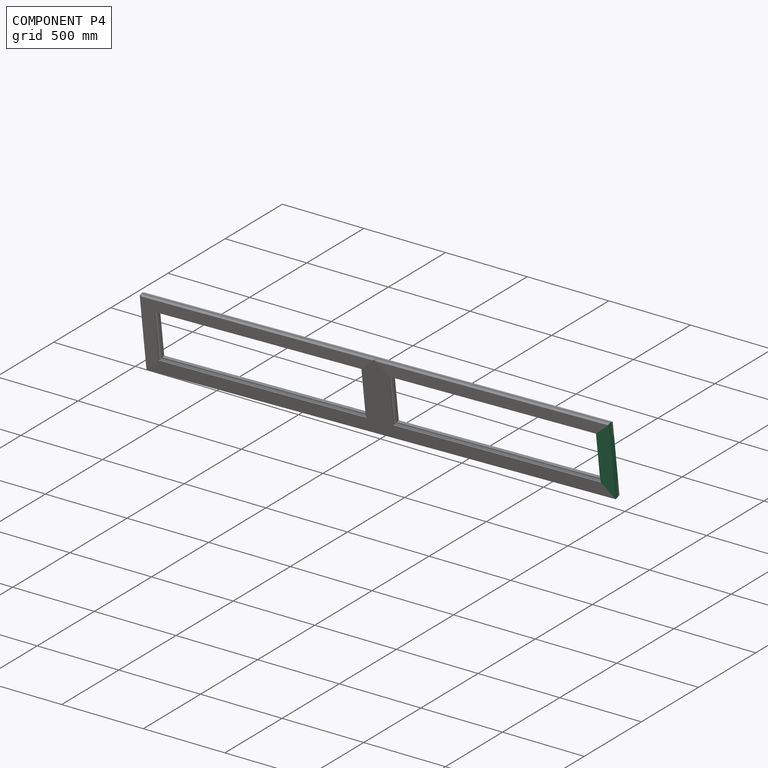
[diagram: component P4 — assembled]
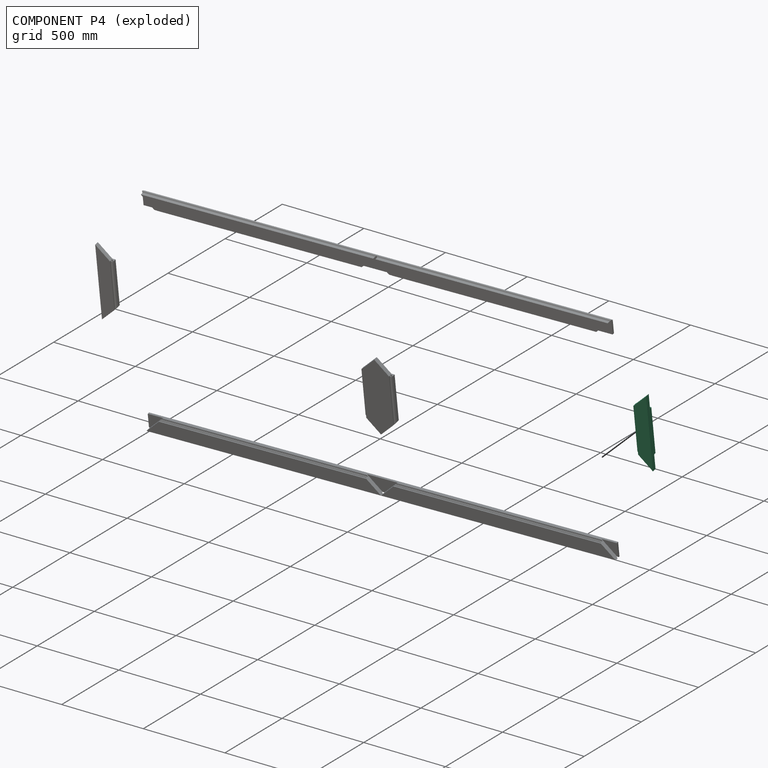
[diagram: component P4 — exploded]
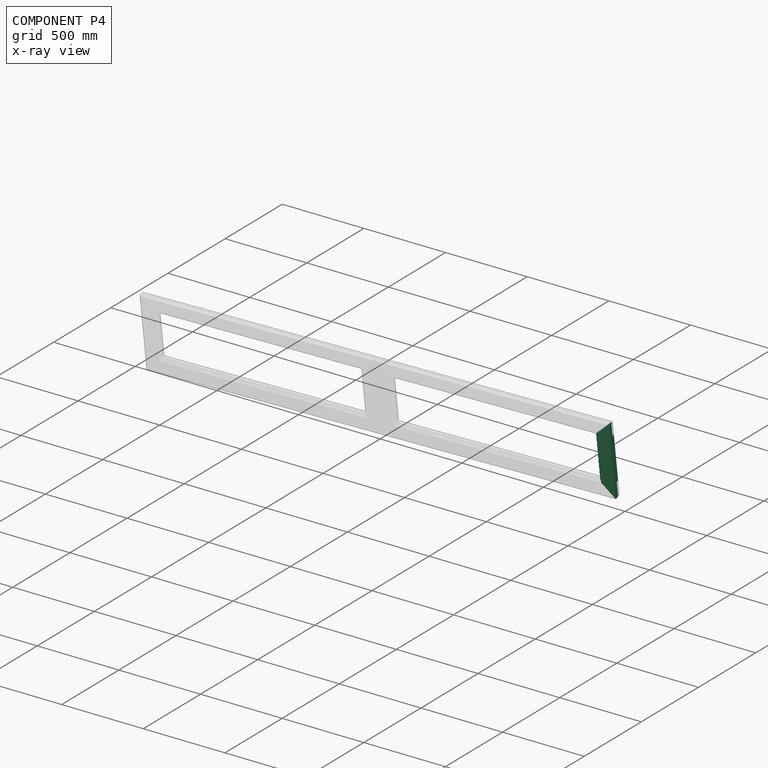
[diagram: component P4 — x-ray view]
COMPONENT P4 — same part as P0 (CADFS 00863583); its construction recipe is shown at P0.
Held by: PLANAR mate "Planar 9" to P3; PLANAR mate "Planar 7" to P3; PLANAR mate "Planar 8" to P3.
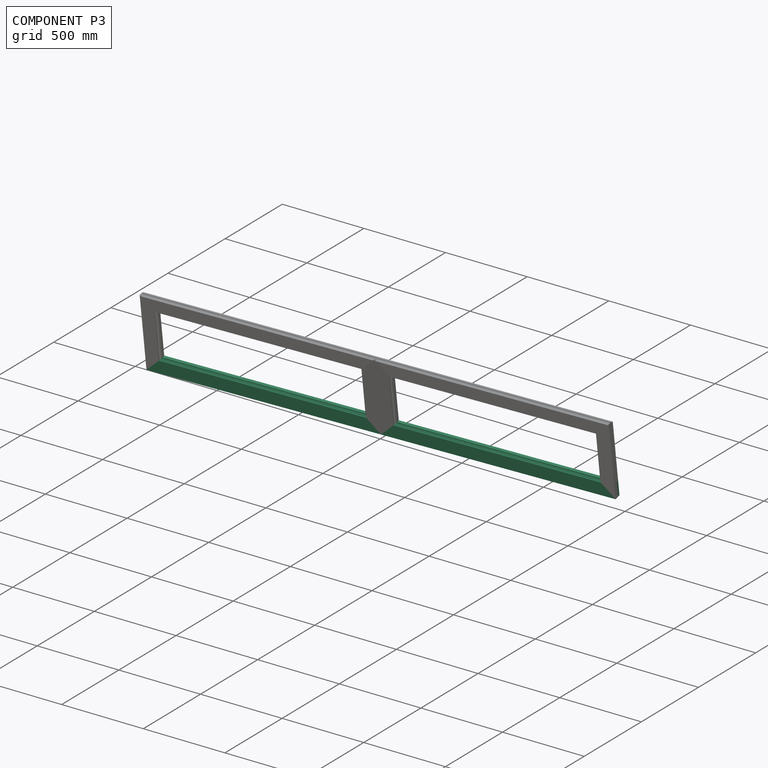
[diagram: component P3 — assembled]
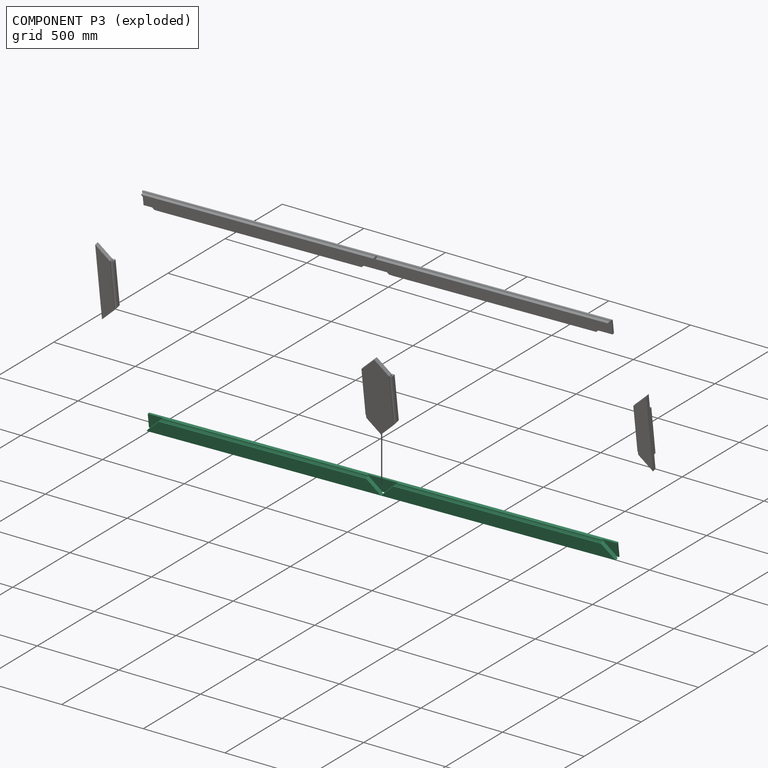
[diagram: component P3 — exploded]
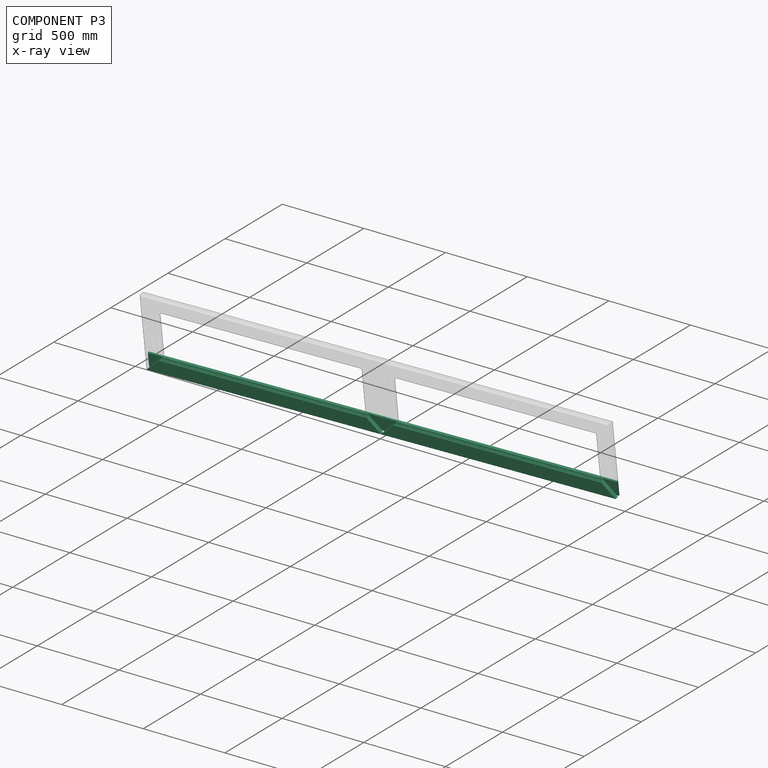
[diagram: component P3 — x-ray view]
COMPONENT P3 — recipe-attached (CADFS 00863582, mesh-verified: the recipe's output STEP matches this component's geometry to below the mesh-comparison resolution (tessellation chordal tolerance ~4.12 mm)).
Held by: PLANAR mate "Planar 1" to P0; PLANAR mate "Planar 3" to P0; PLANAR mate "Planar 11" to P1; PLANAR mate "Planar 12" to P1; PLANAR mate "Planar 9" to P4; PLANAR mate "Planar 7" to P4; PLANAR mate "Planar 10" to P1; PLANAR mate "Planar 8" to P4.
Construction recipe (FeatureScript — the CAD program that rebuilds this solid; sketch coordinates are in the units given by the * unit suffixes, e.g. mm):

FeatureScript 1511;
import(path : "onshape/std/geometry.fs", version : "1511.0");
import(path : "onshape/std/common.fs", version : "1511.0");
const mm = millimeter;
const VERTEX = EntityType.VERTEX;
const EDGE = EntityType.EDGE;
const FACE = EntityType.FACE;
const BODY = EntityType.BODY;
function v(x, y){return vector(x, y);}
function OD(order){return orderDisambiguation(order);}
function OSD(set){return originalSetDisambiguation(set);}
function TD(topology){return topologyDisambiguation(topology);}
function TDD(query){return trueDependencyDisambiguation(query);}
function sQuery(a, b, c) {return sketchEntityQuery(a, b, c);}

annotation { "Feature Type Name" : "Feature", "Feature Type Description" : "" }
export const myFeature = defineFeature(function(context is Context, id is Id, definition is map)
    precondition{}
    {
        {
            var Q0;
            Q0=qCreatedBy(makeId("Front.planeOp"),FACE);
            var sketch = newSketch(context, id + "F0", { "sketchPlane" : qUnion([Q0])});
            skLineSegment(sketch, "E0.bottom", {"start": v(-1371.6, 44.45) * mm, "end": v(1371.6, 44.45) * mm});
            skLineSegment(sketch, "E0.top", {"start": v(-1371.6, -44.45) * mm, "end": v(1371.6, -44.45) * mm});
            skLineSegment(sketch, "E0.left", {"start": v(-1371.6, 44.45) * mm, "end": v(-1371.6, -44.45) * mm});
            skLineSegment(sketch, "E0.right", {"start": v(1371.6, 44.45) * mm, "end": v(1371.6, -44.45) * mm});
            skPoint(sketch, "E0.middle", {"position": v(0, 0) * mm});
            skSolve(sketch);
        }
        {
            var Q0;
            Q0 = qSketchRegion(id + "F0", true);
            extrude(context, id + "F1", {"entities" : qUnion([Q0]), "oppositeDirection" : true, "depth" : 38.1 * mm, "offsetDistance" : 25.4 * mm});
        }
        {
            var Q0;
            Q0=makeQuery(id+"F1.opExtrude","SWEPT_FACE",FACE,{"disambiguationData":[OSD([sQuery(id+"F0.wireOp",EDGE,"E0.right")])]});
            var sketch = newSketch(context, id + "F2", { "sketchPlane" : qUnion([Q0])});
            skLineSegment(sketch, "E1", {"start": v(22.22, -38.1) * mm, "end": v(19.05, -44.45) * mm});
            skLineSegment(sketch, "E2", {"start": v(31.75, -44.45) * mm, "end": v(28.57, -38.1) * mm});
            skLineSegment(sketch, "E3", {"start": v(22.22, -38.1) * mm, "end": v(28.57, -38.1) * mm});
            skLineSegment(sketch, "E4", {"start": v(31.75, -44.45) * mm, "end": v(19.05, -44.45) * mm});
            skSolve(sketch);
        }
        {
            var Q0;
            Q0 = qSketchRegion(id + "F2", true);
            extrude(context, id + "F3", {"entities" : qUnion([Q0]), "operationType" : NewBodyOperationType.REMOVE, "endBound" : BoundingType.THROUGH_ALL, "oppositeDirection" : true, "depth" : 25.4 * mm, "offsetDistance" : 25.4 * mm});
        }
        {
            var Q0;
            Q0=makeQuery(id+"F1.opExtrude","SWEPT_FACE",FACE,{"disambiguationData":[OSD([sQuery(id+"F0.wireOp",EDGE,"E0.right")])]});
            var sketch = newSketch(context, id + "F4", { "sketchPlane" : qUnion([Q0])});
            skLineSegment(sketch, "E5", {"start": v(0, 34.93) * mm, "end": v(6.35, 34.93) * mm});
            skLineSegment(sketch, "E6", {"start": v(12.7, 34.93) * mm, "end": v(19.05, 34.93) * mm});
            skArc(sketch, "E7", {"start": v(8.5, 39.69) * mm, "mid": v(6.91, 37.54) * mm, "end": v(6.35, 34.93) * mm});
            skLineSegment(sketch, "E8", {"start": v(12.7, 44.45) * mm, "end": v(12.7, 34.93) * mm});
            skLineSegment(sketch, "E9", {"start": v(19.05, 34.93) * mm, "end": v(19.05, 44.45) * mm});
            skLineSegment(sketch, "E10", {"start": v(10.65, 44.45) * mm, "end": v(0, 44.45) * mm});
            skLineSegment(sketch, "E11", {"start": v(0, 44.45) * mm, "end": v(0, 34.93) * mm});
            skLineSegment(sketch, "E12", {"start": v(12.7, 44.45) * mm, "end": v(19.05, 44.45) * mm});
            skArc(sketch, "E13", {"start": v(8.5, 39.69) * mm, "mid": v(10.09, 41.84) * mm, "end": v(10.65, 44.45) * mm});
            skSolve(sketch);
        }
        {
            var Q0;
            Q0 = qSketchRegion(id + "F4", true);
            extrude(context, id + "F5", {"entities" : qUnion([Q0]), "operationType" : NewBodyOperationType.REMOVE, "endBound" : BoundingType.THROUGH_ALL, "oppositeDirection" : true, "depth" : 25.4 * mm, "offsetDistance" : 25.4 * mm});
        }
        {
            var Q0;
            Q0=makeQuery(id+"F1.opExtrude","CAP_FACE",FACE,{"disambiguationData":[OSD([sQuery(id+"F0.wireOp",EDGE,"E0.bottom"),sQuery(id+"F0.wireOp",EDGE,"E0.top"),sQuery(id+"F0.wireOp",EDGE,"E0.left"),sQuery(id+"F0.wireOp",EDGE,"E0.right")])],"isStart":true});
            var sketch = newSketch(context, id + "F6", { "sketchPlane" : qUnion([Q0])});
            skLineSegment(sketch, "E14", {"start": v(-1371.6, -44.45) * mm, "end": v(-1282.7, 44.45) * mm});
            skLineSegment(sketch, "E15", {"start": v(-1282.7, 44.45) * mm, "end": v(-1371.6, 44.45) * mm});
            skLineSegment(sketch, "E16", {"start": v(-1371.6, 44.45) * mm, "end": v(-1371.6, -44.45) * mm});
            skPoint(sketch, "E17", {"position": v(-1371.6, -4.76) * mm});
            skLineSegment(sketch, "E18", {"start": v(0, 760.27) * mm, "end": v(0, -577.9) * mm, "construction": true});
            skLineSegment(sketch, "E19", {"start": v(-89, 44.45) * mm, "end": v(0, -44.55) * mm});
            skLineSegment(sketch, "E20", {"start": v(-89, 44.45) * mm, "end": v(0, 44.45) * mm});
            skLineSegment(sketch, "E21.MirrorCS", {"start": v(89, 44.45) * mm, "end": v(0, 44.45) * mm});
            skLineSegment(sketch, "E22.MirrorCS", {"start": v(89, 44.45) * mm, "end": v(0, -44.55) * mm});
            skLineSegment(sketch, "E23.MirrorCS", {"start": v(1371.6, 44.45) * mm, "end": v(1371.6, -44.45) * mm});
            skLineSegment(sketch, "E24.MirrorCS", {"start": v(1371.6, -44.45) * mm, "end": v(1282.7, 44.45) * mm});
            skLineSegment(sketch, "E25.MirrorCS", {"start": v(1282.7, 44.45) * mm, "end": v(1371.6, 44.45) * mm});
            skSolve(sketch);
        }
        {
            var Q0;
            Q0 = qSketchRegion(id + "F6", true);
            extrude(context, id + "F7", {"entities" : qUnion([Q0]), "operationType" : NewBodyOperationType.REMOVE, "oppositeDirection" : true, "depth" : 25.4 * mm, "offsetDistance" : 25.4 * mm});
        }
    });
PROVENANCE & LICENSES
Assembly (occurrences, transforms, mates, per-part STEP geometry): AutoMate dataset, Zenodo record 7776208, CC0.
Construction recipes: CADFS (HuggingFace VladPyatov/CADFS, CC-BY-4.0, layered over the ABC dataset), FeatureScript reconstruction programs keyed by ABC model id.
Join: ABC meta listings map ABC model id -> Onshape documentId; within a shared document, parts are matched by geometric signature (bounding-box dims + volume at 0.1% relative tolerance, exact B-rep face/solid counts).
Verification: 5 of this assembly's 5 components carry a recipe attachment, and every attachment is mesh-verified: the CADFS STEP and the AutoMate member STEP were compared as meshes in their shared local frame (symmetric sampled-point-to-mesh distance); worst across the 5 attachments: below the mesh-comparison resolution (tessellation chordal tolerance ~4.12 mm) on a 2745 mm part.
Renders: orthographic iso camera (az 35 / el 25); the floor grid conveys scale (grid pitch printed in each image; no ruler). In the exploded view each component is displaced by its stored offset vector: the offsets alone carry the explosion direction (mate normal/axis signs are not orientation cues and do not encode it), and separation distances are assigned per mate-chain, not proportionally to assembly-order depth.
